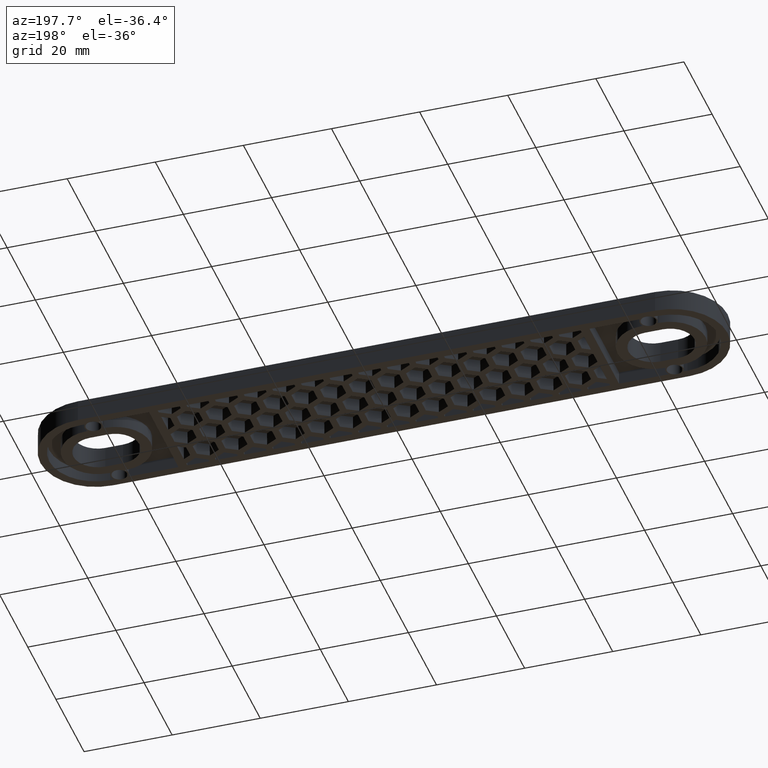
[diagram: clean part render]
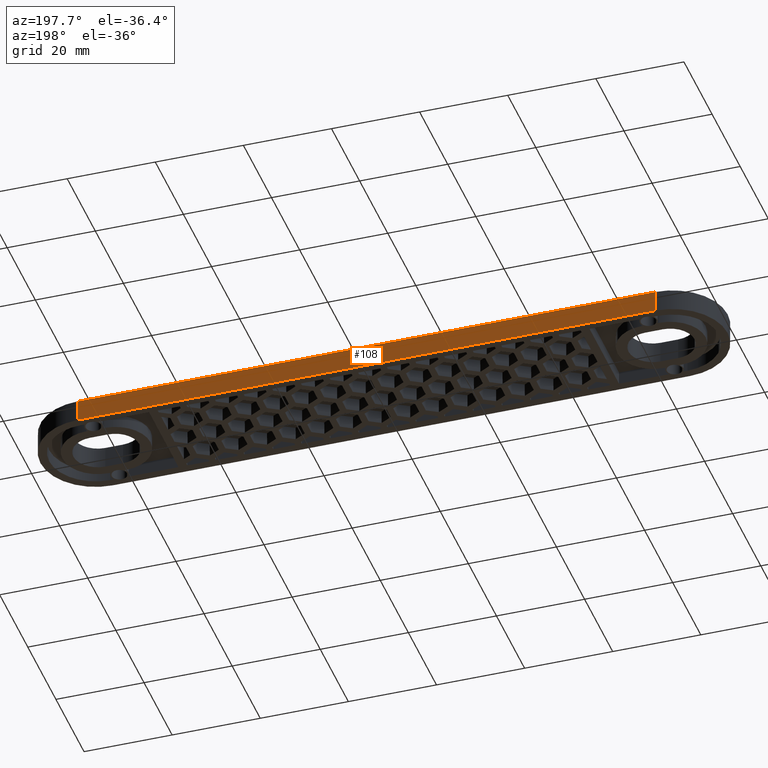
[diagram: same view with one face highlighted and labeled with its STEP entity id]
A machine part, auxiliary view. The second image highlights one B-rep face of the part: STEP entity #108.
In plain terms, the highlighted planar face has unit normal (0, -1, 0).
Its self-contained STEP definition (entity closure, byte-faithful):
#108 = ADVANCED_FACE( '', ( #846 ), #847, .F. );
#846 = FACE_OUTER_BOUND( '', #2164, .T. );
#847 = PLANE( '', #2165 );
#2164 = EDGE_LOOP( '', ( #4100, #4101, #4102, #4103 ) );
#2165 = AXIS2_PLACEMENT_3D( '', #4104, #4105, #4106 );
#4100 = ORIENTED_EDGE( '', *, *, #8241, .T. );
#4101 = ORIENTED_EDGE( '', *, *, #8838, .F. );
#4102 = ORIENTED_EDGE( '', *, *, #8602, .F. );
#4103 = ORIENTED_EDGE( '', *, *, #8839, .T. );
#4104 = CARTESIAN_POINT( '', ( -65.5000000000000, 12.5000000000000, -1.46431667789534E-014 ) );
#4105 = DIRECTION( '', ( 0.000000000000000, -1.00000000000000, 6.12303176911189E-017 ) );
#4106 = DIRECTION( '', ( -1.00000000000000, 0.000000000000000, 0.000000000000000 ) );
#8241 = EDGE_CURVE( '', #9803, #9801, #9804, .T. );
#8602 = EDGE_CURVE( '', #10517, #10519, #10520, .T. );
#8838 = EDGE_CURVE( '', #10519, #9801, #10963, .T. );
#8839 = EDGE_CURVE( '', #10517, #9803, #10964, .T. );
#9801 = VERTEX_POINT( '', #12380 );
#9803 = VERTEX_POINT( '', #12382 );
#9804 = LINE( '', #12383, #12384 );
#10517 = VERTEX_POINT( '', #13419 );
#10519 = VERTEX_POINT( '', #13421 );
#10520 = LINE( '', #13422, #13423 );
#10963 = LINE( '', #14077, #14078 );
#10964 = LINE( '', #14079, #14080 );
#12380 = CARTESIAN_POINT( '', ( 65.5000000000001, 12.5000000000000, 4.99999999999999 ) );
#12382 = CARTESIAN_POINT( '', ( -65.5000000000000, 12.5000000000000, 4.99999999999999 ) );
#12383 = CARTESIAN_POINT( '', ( -65.5000000000000, 12.5000000000000, 4.99999999999999 ) );
#12384 = VECTOR( '', #16381, 1000.00000000000 );
#13419 = CARTESIAN_POINT( '', ( -65.5000000000000, 12.5000000000000, -1.46431667789534E-014 ) );
#13421 = CARTESIAN_POINT( '', ( 65.5000000000001, 12.5000000000000, -1.46431667789534E-014 ) );
#13422 = CARTESIAN_POINT( '', ( -65.5000000000000, 12.5000000000000, -1.46431667789534E-014 ) );
#13423 = VECTOR( '', #16818, 1000.00000000000 );
#14077 = CARTESIAN_POINT( '', ( 65.5000000000001, 12.5000000000000, -1.46431667789534E-014 ) );
#14078 = VECTOR( '', #17102, 1000.00000000000 );
#14079 = CARTESIAN_POINT( '', ( -65.5000000000000, 12.5000000000000, -1.46431667789534E-014 ) );
#14080 = VECTOR( '', #17103, 1000.00000000000 );
#16381 = DIRECTION( '', ( 1.00000000000000, 0.000000000000000, 0.000000000000000 ) );
#16818 = DIRECTION( '', ( 1.00000000000000, 0.000000000000000, 0.000000000000000 ) );
#17102 = DIRECTION( '', ( 0.000000000000000, 6.12303176911189E-017, 1.00000000000000 ) );
#17103 = DIRECTION( '', ( 0.000000000000000, 6.12303176911189E-017, 1.00000000000000 ) );